MODEL slx_814b2b904783
KIND library
CONFIG AbsTol = auto
CONFIG EnableMultiTasking = off
CONFIG FixedStep = auto
CONFIG MaxStep = auto
CONFIG MinStep = auto
CONFIG RelTol = 1e-3
CONFIG SampleTimeConstraint = Unconstrained
CONFIG Solver = VariableStepAuto
CONFIG SolverName = VariableStepAuto
CONFIG StartTime = 0.0
CONFIG StopTime = 10.0
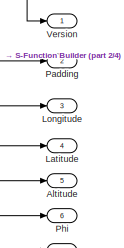
[diagram: Subsystem - part 1/4, top right region]
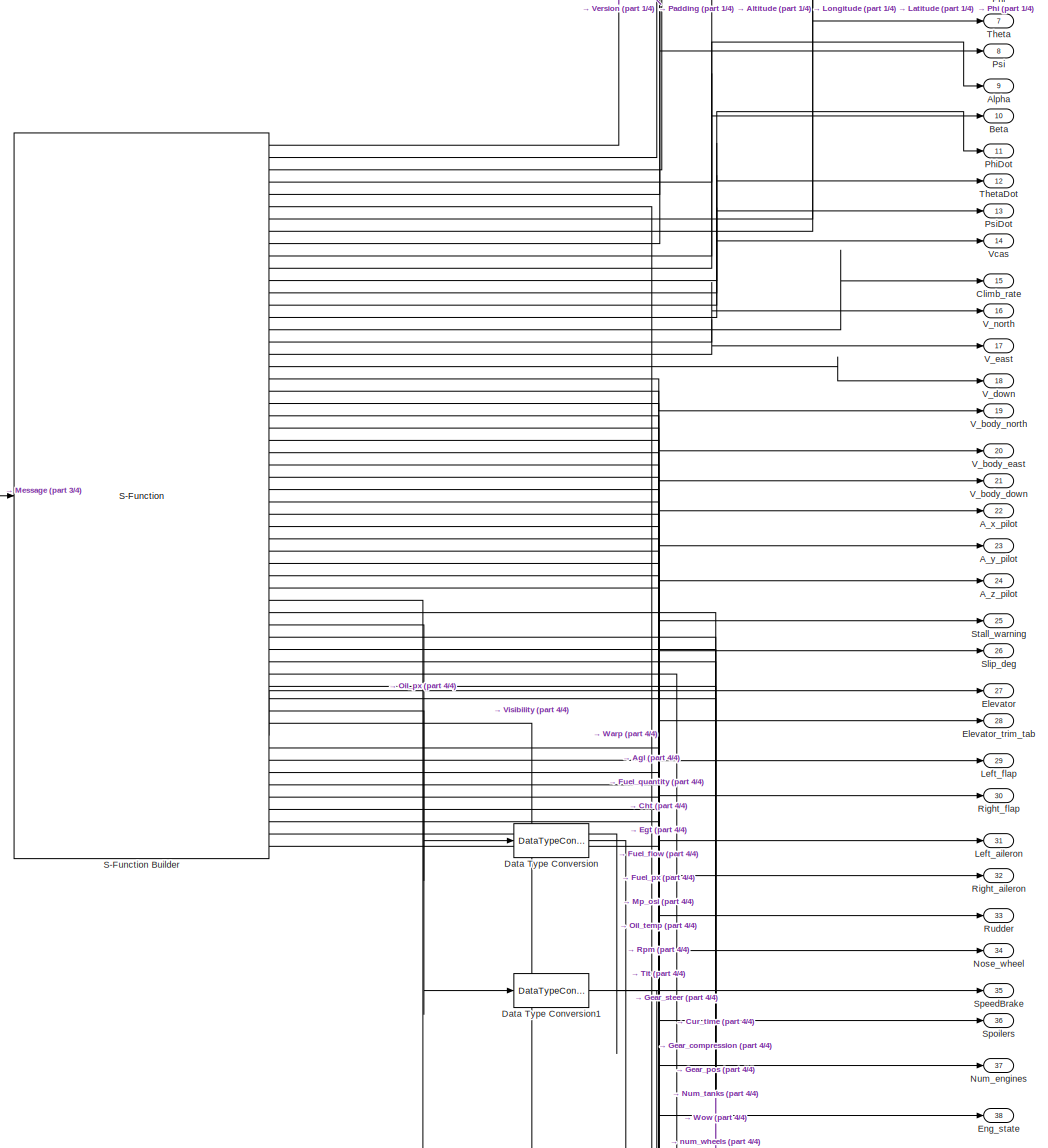
[diagram: Subsystem - part 2/4, full width, middle band]
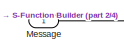
[diagram: Subsystem - part 3/4, middle left region]
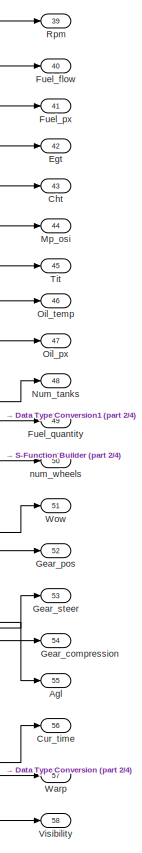
[diagram: Subsystem - part 4/4, bottom right region]
BLOCK [SubSystem] Subsystem
  Ports = [1, 58]
  RequestExecContextInheritance = off
  Variant = off
BLOCK [Outport] Subsystem/A_x_pilot
  IconDisplay = Port number
  Port = 22
BLOCK [Outport] Subsystem/A_y_pilot
  IconDisplay = Port number
  Port = 23
BLOCK [Outport] Subsystem/A_z_pilot
  IconDisplay = Port number
  Port = 24
BLOCK [Outport] Subsystem/Agl
  IconDisplay = Port number
  Port = 55
BLOCK [Outport] Subsystem/Alpha
  IconDisplay = Port number
  Port = 9
BLOCK [Outport] Subsystem/Altitude
  IconDisplay = Port number
  Port = 5
BLOCK [Outport] Subsystem/Beta
  IconDisplay = Port number
  Port = 10
BLOCK [Outport] Subsystem/Cht
  IconDisplay = Port number
  Port = 43
BLOCK [Outport] Subsystem/Climb_rate
  IconDisplay = Port number
  Port = 15
BLOCK [Outport] Subsystem/Cur_time
  IconDisplay = Port number
  Port = 56
BLOCK [DataTypeConversion] Subsystem/Data Type Conversion
  OutDataTypeStr = int32
  RndMeth = Floor
  SaturateOnIntegerOverflow = off
BLOCK [DataTypeConversion] Subsystem/Data Type Conversion1
  OutDataTypeStr = single
  RndMeth = Floor
  SaturateOnIntegerOverflow = off
BLOCK [Outport] Subsystem/Egt
  IconDisplay = Port number
  Port = 42
BLOCK [Outport] Subsystem/Elevator
  IconDisplay = Port number
  Port = 27
BLOCK [Outport] Subsystem/Elevator_trim_tab
  IconDisplay = Port number
  Port = 28
BLOCK [Outport] Subsystem/Eng_state
  IconDisplay = Port number
  Port = 38
BLOCK [Outport] Subsystem/Fuel_flow
  IconDisplay = Port number
  Port = 40
BLOCK [Outport] Subsystem/Fuel_px
  IconDisplay = Port number
  Port = 41
BLOCK [Outport] Subsystem/Fuel_quantity
  IconDisplay = Port number
  Port = 49
BLOCK [Outport] Subsystem/Gear_compression
  IconDisplay = Port number
  Port = 54
BLOCK [Outport] Subsystem/Gear_pos
  IconDisplay = Port number
  Port = 52
BLOCK [Outport] Subsystem/Gear_steer
  IconDisplay = Port number
  Port = 53
BLOCK [Outport] Subsystem/Latitude
  IconDisplay = Port number
  Port = 4
BLOCK [Outport] Subsystem/Left_aileron
  IconDisplay = Port number
  Port = 31
BLOCK [Outport] Subsystem/Left_flap
  IconDisplay = Port number
  Port = 29
BLOCK [Outport] Subsystem/Longitude
  IconDisplay = Port number
  Port = 3
BLOCK [Inport] Subsystem/Message
  IconDisplay = Port number
BLOCK [Outport] Subsystem/Mp_osi
  IconDisplay = Port number
  Port = 44
BLOCK [Outport] Subsystem/Nose_wheel
  IconDisplay = Port number
  Port = 34
BLOCK [Outport] Subsystem/Num_engines
  IconDisplay = Port number
  Port = 37
BLOCK [Outport] Subsystem/Num_tanks
  IconDisplay = Port number
  Port = 48
BLOCK [Outport] Subsystem/Oil_px
  IconDisplay = Port number
  Port = 47
BLOCK [Outport] Subsystem/Oil_temp
  IconDisplay = Port number
  Port = 46
BLOCK [Outport] Subsystem/Padding
  IconDisplay = Port number
  Port = 2
BLOCK [Outport] Subsystem/Phi
  IconDisplay = Port number
  Port = 6
BLOCK [Outport] Subsystem/PhiDot
  IconDisplay = Port number
  Port = 11
BLOCK [Outport] Subsystem/Psi
  IconDisplay = Port number
  Port = 8
BLOCK [Outport] Subsystem/PsiDot
  IconDisplay = Port number
  Port = 13
BLOCK [Outport] Subsystem/Right_aileron
  IconDisplay = Port number
  Port = 32
BLOCK [Outport] Subsystem/Right_flap
  IconDisplay = Port number
  Port = 30
BLOCK [Outport] Subsystem/Rpm
  IconDisplay = Port number
  Port = 39
BLOCK [Outport] Subsystem/Rudder
  IconDisplay = Port number
  Port = 33
BLOCK [S-Function] Subsystem/S-Function Builder
  CopyFcn = set_param(gcbh,'LinkStatus','none')
  EnableBusSupport = off
  FunctionName = BytesToFdm
  InitFcn = try, set_param(gcb,'FunctionName','BytesToFdm'), end
  OpenFcn = sfunctionwizard(gcbh)
  Ports = [1, 58]
  PreSaveFcn = try, set_param(gcb,'FunctionName','BytesToFdm'), end
  SFcnIsStateOwnerBlock = off
  SFunctionDeploymentMode = off
  SFunctionModules = BytesToFdm_wrapper FDM_helper
BLOCK [Outport] Subsystem/Slip_deg
  IconDisplay = Port number
  Port = 26
BLOCK [Outport] Subsystem/SpeedBrake
  IconDisplay = Port number
  Port = 35
BLOCK [Outport] Subsystem/Spoilers
  IconDisplay = Port number
  Port = 36
BLOCK [Outport] Subsystem/Stall_warning
  IconDisplay = Port number
  Port = 25
BLOCK [Outport] Subsystem/Theta
  IconDisplay = Port number
  Port = 7
BLOCK [Outport] Subsystem/ThetaDot
  IconDisplay = Port number
  Port = 12
BLOCK [Outport] Subsystem/Tit
  IconDisplay = Port number
  Port = 45
BLOCK [Outport] Subsystem/V_body_down
  IconDisplay = Port number
  Port = 21
BLOCK [Outport] Subsystem/V_body_east
  IconDisplay = Port number
  Port = 20
BLOCK [Outport] Subsystem/V_body_north
  IconDisplay = Port number
  Port = 19
BLOCK [Outport] Subsystem/V_down
  IconDisplay = Port number
  Port = 18
BLOCK [Outport] Subsystem/V_east
  IconDisplay = Port number
  Port = 17
BLOCK [Outport] Subsystem/V_north
  IconDisplay = Port number
  Port = 16
BLOCK [Outport] Subsystem/Vcas
  IconDisplay = Port number
  Port = 14
BLOCK [Outport] Subsystem/Version
  IconDisplay = Port number
BLOCK [Outport] Subsystem/Visibility
  IconDisplay = Port number
  Port = 58
BLOCK [Outport] Subsystem/Warp
  IconDisplay = Port number
  Port = 57
BLOCK [Outport] Subsystem/Wow
  IconDisplay = Port number
  Port = 51
BLOCK [Outport] Subsystem/num_wheels
  IconDisplay = Port number
  Port = 50
ANNOTATION (root): Author: Shabbir Hussain Email: <email> Date: Nov 1 2016 Desc: This module takes in a UDP packet and decodes the values from Flight Gear. This module has its outputs arranged to be compatible with the Aerospace Blockset FDM_Pack module
LINE Subsystem/Data Type Conversion1:1 -> Subsystem/Fuel_quantity:1
LINE Subsystem/Data Type Conversion:1 -> Subsystem/Warp:1
LINE Subsystem/Message:1 -> Subsystem/S-Function Builder:1
LINE Subsystem/S-Function Builder:1 -> Subsystem/Version:1
LINE Subsystem/S-Function Builder:10 -> Subsystem/Alpha:1
LINE Subsystem/S-Function Builder:11 -> Subsystem/Beta:1
LINE Subsystem/S-Function Builder:12 -> Subsystem/PhiDot:1
LINE Subsystem/S-Function Builder:13 -> Subsystem/ThetaDot:1
LINE Subsystem/S-Function Builder:14 -> Subsystem/PsiDot:1
LINE Subsystem/S-Function Builder:15 -> Subsystem/Vcas:1
LINE Subsystem/S-Function Builder:16 -> Subsystem/Climb_rate:1
LINE Subsystem/S-Function Builder:17 -> Subsystem/V_north:1
LINE Subsystem/S-Function Builder:18 -> Subsystem/V_east:1
LINE Subsystem/S-Function Builder:19 -> Subsystem/V_down:1
LINE Subsystem/S-Function Builder:2 -> Subsystem/Padding:1
LINE Subsystem/S-Function Builder:20 -> Subsystem/V_body_north:1
LINE Subsystem/S-Function Builder:21 -> Subsystem/V_body_east:1
LINE Subsystem/S-Function Builder:22 -> Subsystem/V_body_down:1
LINE Subsystem/S-Function Builder:23 -> Subsystem/A_x_pilot:1
LINE Subsystem/S-Function Builder:24 -> Subsystem/A_y_pilot:1
LINE Subsystem/S-Function Builder:25 -> Subsystem/A_z_pilot:1
LINE Subsystem/S-Function Builder:26 -> Subsystem/Stall_warning:1
LINE Subsystem/S-Function Builder:27 -> Subsystem/Slip_deg:1
LINE Subsystem/S-Function Builder:28 -> Subsystem/Num_engines:1
LINE Subsystem/S-Function Builder:29 -> Subsystem/Eng_state:1
LINE Subsystem/S-Function Builder:3 -> Subsystem/Longitude:1
LINE Subsystem/S-Function Builder:30 -> Subsystem/Rpm:1
LINE Subsystem/S-Function Builder:31 -> Subsystem/Fuel_flow:1
LINE Subsystem/S-Function Builder:32 -> Subsystem/Fuel_px:1
LINE Subsystem/S-Function Builder:33 -> Subsystem/Egt:1
LINE Subsystem/S-Function Builder:34 -> Subsystem/Cht:1
LINE Subsystem/S-Function Builder:35 -> Subsystem/Mp_osi:1
LINE Subsystem/S-Function Builder:36 -> Subsystem/Tit:1
LINE Subsystem/S-Function Builder:37 -> Subsystem/Oil_temp:1
LINE Subsystem/S-Function Builder:38 -> Subsystem/Oil_px:1
LINE Subsystem/S-Function Builder:39 -> Subsystem/Num_tanks:1
LINE Subsystem/S-Function Builder:4 -> Subsystem/Latitude:1
LINE Subsystem/S-Function Builder:40 -> Subsystem/Data Type Conversion1:1
LINE Subsystem/S-Function Builder:41 -> Subsystem/num_wheels:1
LINE Subsystem/S-Function Builder:42 -> Subsystem/Wow:1
LINE Subsystem/S-Function Builder:43 -> Subsystem/Gear_pos:1
LINE Subsystem/S-Function Builder:44 -> Subsystem/Gear_steer:1
LINE Subsystem/S-Function Builder:45 -> Subsystem/Gear_compression:1
LINE Subsystem/S-Function Builder:46 -> Subsystem/Cur_time:1
LINE Subsystem/S-Function Builder:47 -> Subsystem/Data Type Conversion:1
LINE Subsystem/S-Function Builder:48 -> Subsystem/Visibility:1
LINE Subsystem/S-Function Builder:49 -> Subsystem/Elevator:1
LINE Subsystem/S-Function Builder:5 -> Subsystem/Altitude:1
LINE Subsystem/S-Function Builder:50 -> Subsystem/Elevator_trim_tab:1
LINE Subsystem/S-Function Builder:51 -> Subsystem/Left_flap:1
LINE Subsystem/S-Function Builder:52 -> Subsystem/Right_flap:1
LINE Subsystem/S-Function Builder:53 -> Subsystem/Left_aileron:1
LINE Subsystem/S-Function Builder:54 -> Subsystem/Right_aileron:1
LINE Subsystem/S-Function Builder:55 -> Subsystem/Rudder:1
LINE Subsystem/S-Function Builder:56 -> Subsystem/Nose_wheel:1
LINE Subsystem/S-Function Builder:57 -> Subsystem/SpeedBrake:1
LINE Subsystem/S-Function Builder:58 -> Subsystem/Spoilers:1
LINE Subsystem/S-Function Builder:6 -> Subsystem/Agl:1
LINE Subsystem/S-Function Builder:7 -> Subsystem/Phi:1
LINE Subsystem/S-Function Builder:8 -> Subsystem/Theta:1
LINE Subsystem/S-Function Builder:9 -> Subsystem/Psi:1
